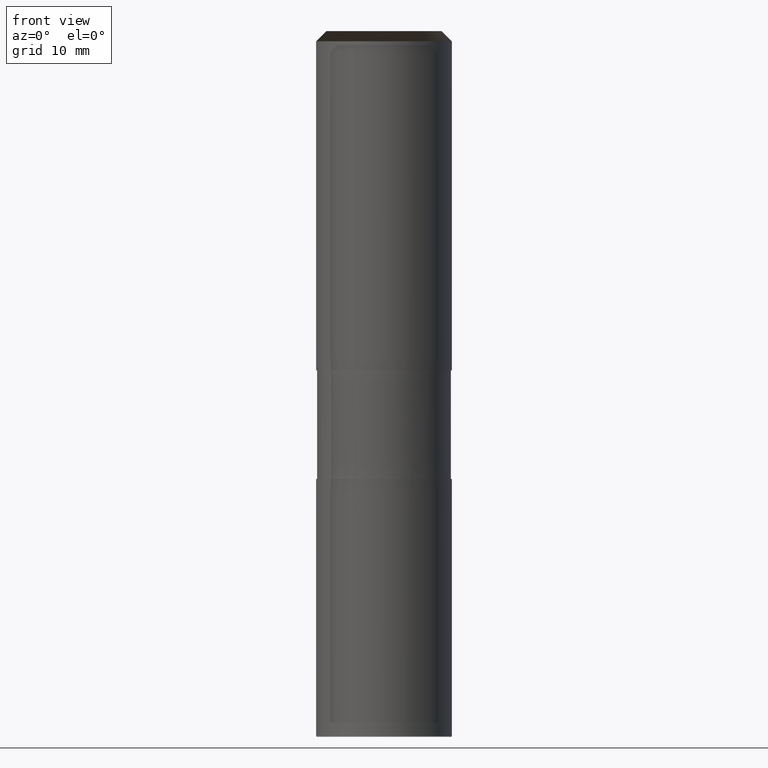
[diagram: clean part render]
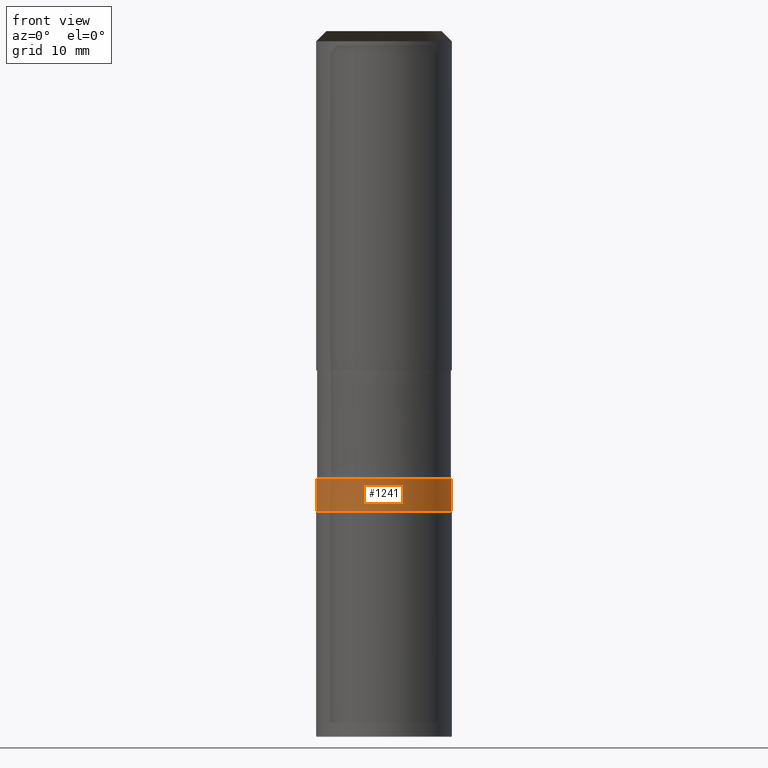
[diagram: same view with one face highlighted and labeled with its STEP entity id]
A machine part, front view. The second image highlights one B-rep face of the part: STEP entity #1241.
In plain terms, the highlighted face is a freeform B-spline surface patch.
Its self-contained STEP definition (entity closure, byte-faithful):
#837=CARTESIAN_POINT('',(10.0,0.0,-20.75));
#841=CARTESIAN_POINT('',(-10.0,0.0,-20.75));
#849=CARTESIAN_POINT('',(-10.0,-10.0,-20.75));
#850=CARTESIAN_POINT('',(0.0,-10.0,-20.75));
#851=CARTESIAN_POINT('',(10.0,-10.0,-20.75));
#852=CARTESIAN_POINT('',(10.0,0.0,-16.0));
#856=CARTESIAN_POINT('',(-10.0,0.0,-16.0));
#883=CARTESIAN_POINT('',(-10.0,-10.0,-16.0));
#884=CARTESIAN_POINT('',(0.0,-10.0,-16.0));
#885=CARTESIAN_POINT('',(10.0,-10.0,-16.0));
#1222=(
BOUNDED_SURFACE()
B_SPLINE_SURFACE(1,2,(
(#841,#849,#850,#851,#837),
(#856,#883,#884,#885,#852)
), .UNSPECIFIED.,.F.,.F.,.F.)
B_SPLINE_SURFACE_WITH_KNOTS((2,2),(3,2,3),(
0.0,1.0),(
0.0,0.5,1.0), .UNSPECIFIED.)
GEOMETRIC_REPRESENTATION_ITEM()
RATIONAL_B_SPLINE_SURFACE(((1.0,0.707106781187,1.0,0.707106781187,1.0),
(1.0,0.707106781187,1.0,0.707106781187,1.0)
))
REPRESENTATION_ITEM('')
SURFACE()
);
#1223=(
BOUNDED_CURVE()
B_SPLINE_CURVE(2,(#837,#851,#850,#849,#841),.UNSPECIFIED.,.F.,.F.)
B_SPLINE_CURVE_WITH_KNOTS((3,2,3),
(0.0,0.5,1.0),.UNSPECIFIED.)
CURVE()
GEOMETRIC_REPRESENTATION_ITEM()
RATIONAL_B_SPLINE_CURVE((1.0,0.707106781187,1.0,0.707106781187,1.0))
REPRESENTATION_ITEM('')
);
#1224=(
BOUNDED_CURVE()
B_SPLINE_CURVE(1,(#841,#856),.UNSPECIFIED.,.F.,.F.)
B_SPLINE_CURVE_WITH_KNOTS((2,2),
(0.0,1.0),.UNSPECIFIED.)
CURVE()
GEOMETRIC_REPRESENTATION_ITEM()
RATIONAL_B_SPLINE_CURVE((1.0,1.0))
REPRESENTATION_ITEM('')
);
#1225=(
BOUNDED_CURVE()
B_SPLINE_CURVE(2,(#856,#883,#884,#885,#852),.UNSPECIFIED.,.F.,.F.)
B_SPLINE_CURVE_WITH_KNOTS((3,2,3),
(0.0,0.5,1.0),.UNSPECIFIED.)
CURVE()
GEOMETRIC_REPRESENTATION_ITEM()
RATIONAL_B_SPLINE_CURVE((1.0,0.707106781187,1.0,0.707106781187,1.0))
REPRESENTATION_ITEM('')
);
#1226=(
BOUNDED_CURVE()
B_SPLINE_CURVE(1,(#852,#837),.UNSPECIFIED.,.F.,.F.)
B_SPLINE_CURVE_WITH_KNOTS((2,2),
(0.0,1.0),.UNSPECIFIED.)
CURVE()
GEOMETRIC_REPRESENTATION_ITEM()
RATIONAL_B_SPLINE_CURVE((1.0,1.0))
REPRESENTATION_ITEM('')
);
#1227=VERTEX_POINT('',#837);
#1228=VERTEX_POINT('',#841);
#1229=VERTEX_POINT('',#852);
#1230=VERTEX_POINT('',#856);
#1231=EDGE_CURVE('',#1227,#1228,#1223,.T.);
#1232=EDGE_CURVE('',#1228,#1230,#1224,.T.);
#1233=EDGE_CURVE('',#1230,#1229,#1225,.T.);
#1234=EDGE_CURVE('',#1229,#1227,#1226,.T.);
#1235=ORIENTED_EDGE('',*,*,#1231,.T.);
#1236=ORIENTED_EDGE('',*,*,#1232,.T.);
#1237=ORIENTED_EDGE('',*,*,#1233,.T.);
#1238=ORIENTED_EDGE('',*,*,#1234,.T.);
#1239=EDGE_LOOP('',(#1235,#1236,#1237,#1238));
#1240=FACE_OUTER_BOUND('',#1239,.T.);
#1241=ADVANCED_FACE('',(#1240),#1222,.T.);